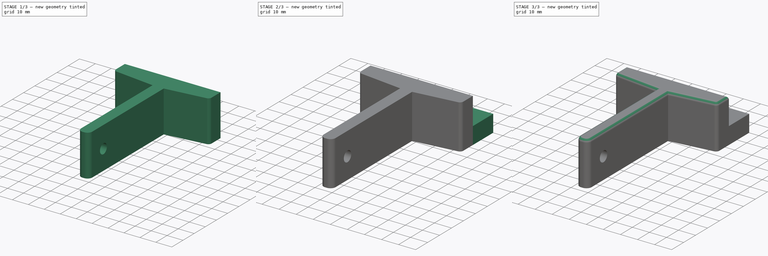
[diagram: build sequence overview — one tinted view per stage of 3, left to right]
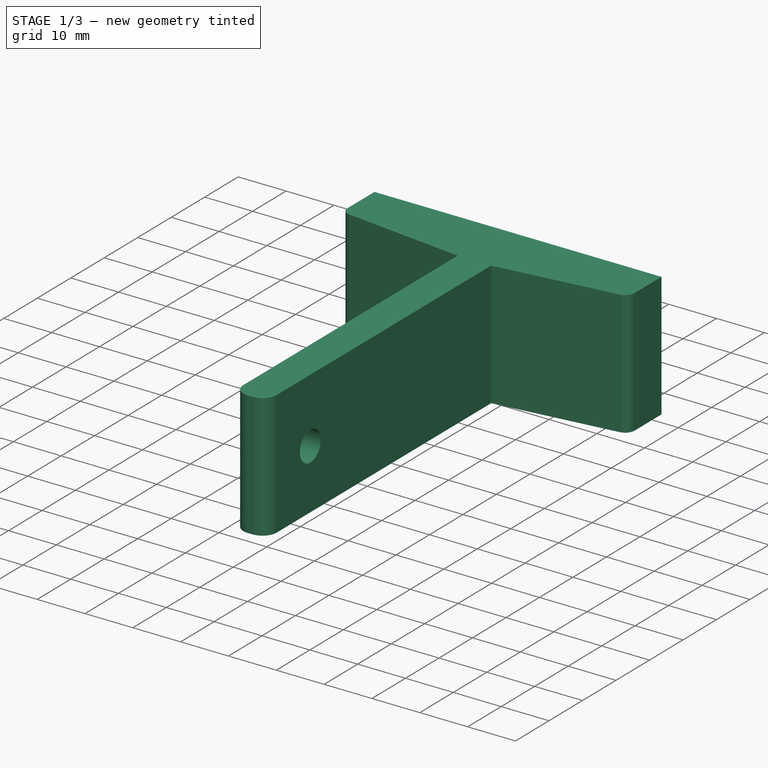
[diagram: stage 1 of 3 — iso view after this stage's code; geometry added in this stage tinted green]
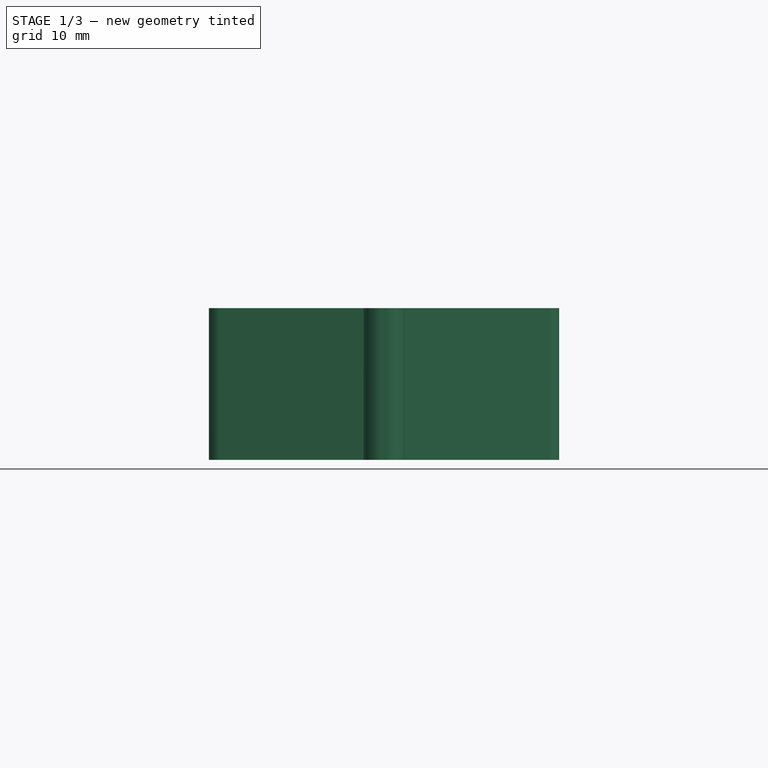
[diagram: stage 1 of 3 — front view after this stage's code; geometry added in this stage tinted green]
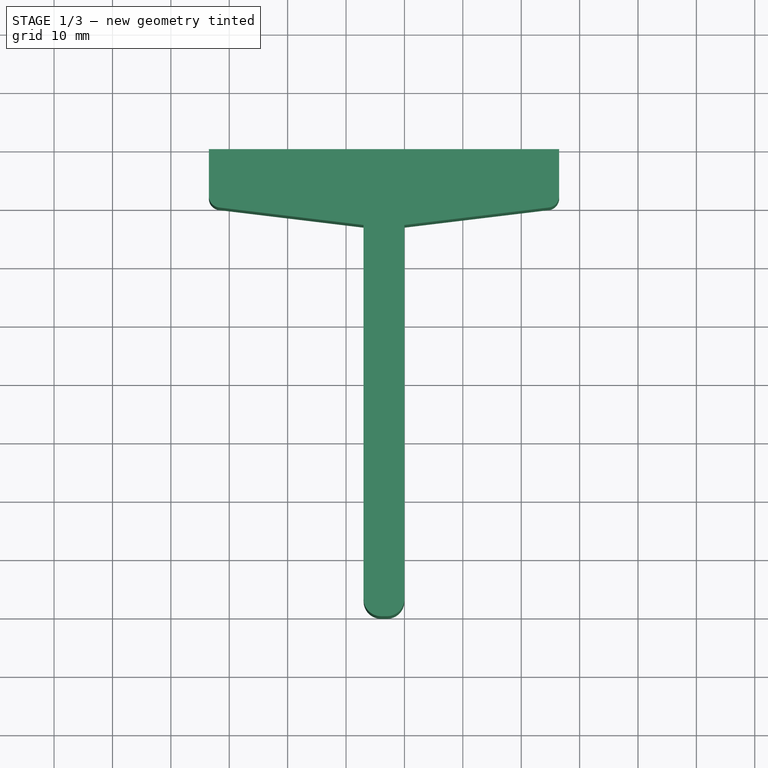
[diagram: stage 1 of 3 — top view after this stage's code; geometry added in this stage tinted green]
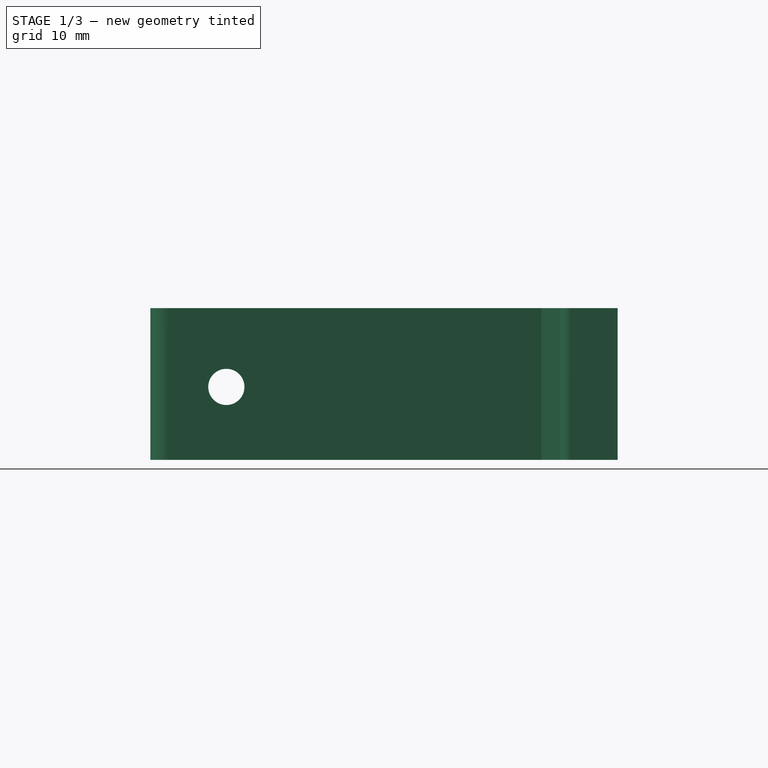
[diagram: stage 1 of 3 — right view after this stage's code; geometry added in this stage tinted green]
FCSTD DOCUMENT  (FreeCAD 0.15R4671 (Git))
Label: mag8-4
License: All rights reserved
LicenseURL: http://en.wikipedia.org/wiki/All_rights_reserved
objects: Sketcher::SketchObject×5, PartDesign::Pocket×3, PartDesign::Pad×2, PartDesign::Fillet×1
note: 16 computed .brp shape members not serialized (recipe doc carries the construction recipe); baked Part::Feature solids carry a one-line shape summary decoded from their .brp

FEATURE [Sketcher::SketchObject] Sketch
  Placement = pos=(0,0,0) rot=(1,0,0;3.14159rad)
  sketch-geometry (12):
    g0: LineSegment StartX=-33.5 StartY=0 StartZ=0 EndX=26.5 EndY=0 EndZ=0
    g1: LineSegment StartX=-33.5 StartY=0 StartZ=0 EndX=-33.5 EndY=8.01454 EndZ=0
    g2: LineSegment StartX=-7 StartY=13 StartZ=0 EndX=-7 EndY=77 EndZ=0
    g3: LineSegment StartX=-4 StartY=80 StartZ=0 EndX=-3 EndY=80 EndZ=0
    g4: LineSegment StartX=0 StartY=77 StartZ=0 EndX=0 EndY=13 EndZ=0
    g5: LineSegment StartX=0 StartY=13 StartZ=0 EndX=24.7408 EndY=10 EndZ=0
    g6: LineSegment StartX=26.5 StartY=8.01454 StartZ=0 EndX=26.5 EndY=0 EndZ=0
    g7: ArcOfCircle CenterX=-4 CenterY=77 CenterZ=0 NormalX=0 NormalY=0 NormalZ=1 Radius=3 StartAngle=1.5708 EndAngle=3.14159
    g8: ArcOfCircle CenterX=-3 CenterY=77 CenterZ=0 NormalX=0 NormalY=0 NormalZ=1 Radius=3 StartAngle=0 EndAngle=1.5708
    g9: ArcOfCircle CenterX=-31.5 CenterY=8.01454 CenterZ=0 NormalX=0 NormalY=0 NormalZ=1 Radius=2 StartAngle=1.69146 EndAngle=3.14159
    g10: ArcOfCircle CenterX=24.5 CenterY=8.01454 CenterZ=0 NormalX=0 NormalY=0 NormalZ=1 Radius=2 StartAngle=0 EndAngle=1.45013
    g11: LineSegment StartX=-31.7407 StartY=10 StartZ=0 EndX=-7 EndY=13 EndZ=0
  constraints (33):
    c: PointOnObject(g0,g-1)
    c: Horizontal(g0)
    c: Coincident(g1,g0)
    c: Vertical(g1)
    c: Vertical(g2)
    c: Horizontal(g3)
    c: Vertical(g4)
    c: Coincident(g5,g4)
    c: Coincident(g6,g0)
    c: Vertical(g6)
    c: DistanceX(g0,g0) = 60
    c: Tangent(g2,g7) = 1.5708
    c: Tangent(g3,g7) = 1.5708
    c: Tangent(g3,g8) = 1.5708
    c: Tangent(g4,g8) = 1.5708
    c: DistanceY(g-1,g4) = 13
    c: DistanceY(g3,g0) = -80
    c: Radius(g7) = 3
    c: Radius(g8) = 3
    c: DistanceX(g4,g2) = -7
    c: Tangent(g1,g9) = 1.5708
    c: Radius(g9) = 2
    c: Tangent(g5,g10) = 1.5708
    c: Tangent(g6,g10) = 1.5708
    c: Radius(g10) = 2
    c: DistanceY(g5,g0) = -10
    c: DistanceX(g4,g6) = 26.5
    c: PointOnObject(g4,g-2)
    c: Coincident(g11,g9)
    c: Coincident(g2,g11)
    c: DistanceY(g4,g2) = 0
    c: Tangent(g9,g11)
    c: DistanceY(g9,g0) = -10
FEATURE [PartDesign::Pad] Pad
  Length = 26
  Length2 = 100
  Placement = pos=(0,0,0) rot=(1,0,0;3.14159rad)
  Sketch = -> Sketch
  Type = 0
FEATURE [Sketcher::SketchObject] Sketch001
  ExternalGeometry = -> [Pad]
  Placement = pos=(0,0,0) rot=(0.57735,-0.57735,0.57735;4.18879rad)
  Support = -> Pad [Face7]
  sketch-geometry (1):
    g0: Circle CenterX=67 CenterY=13.5 CenterZ=0 NormalX=0 NormalY=0 NormalZ=1 Radius=3.1
  constraints (3):
    c: DistanceY(g0,g-4) = 12.5
    c: DistanceX(g-3,g0) = -13
    c: Radius(g0) = 3.1
FEATURE [PartDesign::Pocket] Pocket
  Length = 5
  Placement = pos=(0,0,0) rot=(1,0,0;3.14159rad)
  Sketch = -> Sketch001
  Type = 1
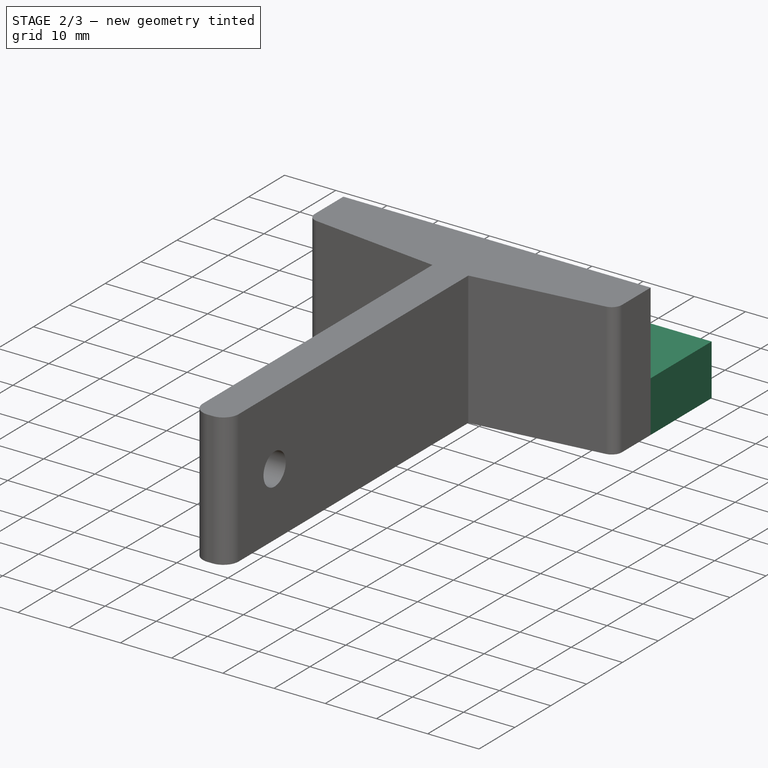
[diagram: stage 2 of 3 — iso view after this stage's code; geometry added in this stage tinted green]
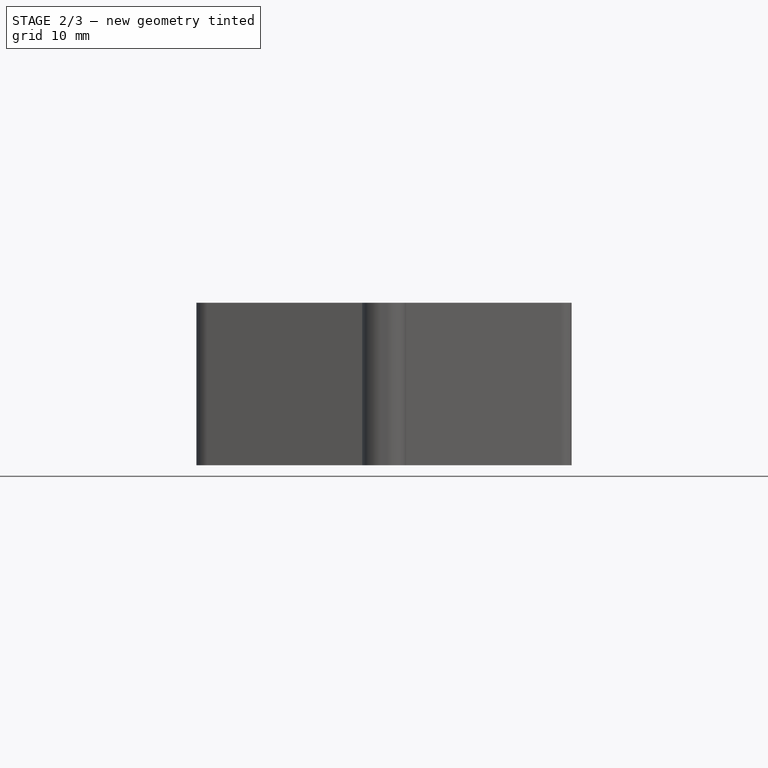
[diagram: stage 2 of 3 — front view after this stage's code; geometry added in this stage tinted green]
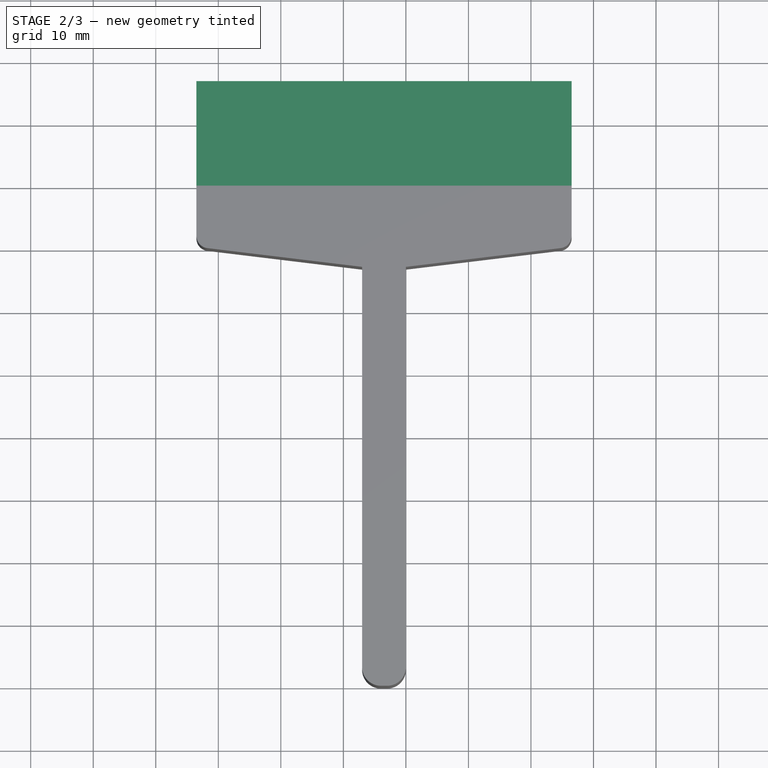
[diagram: stage 2 of 3 — top view after this stage's code; geometry added in this stage tinted green]
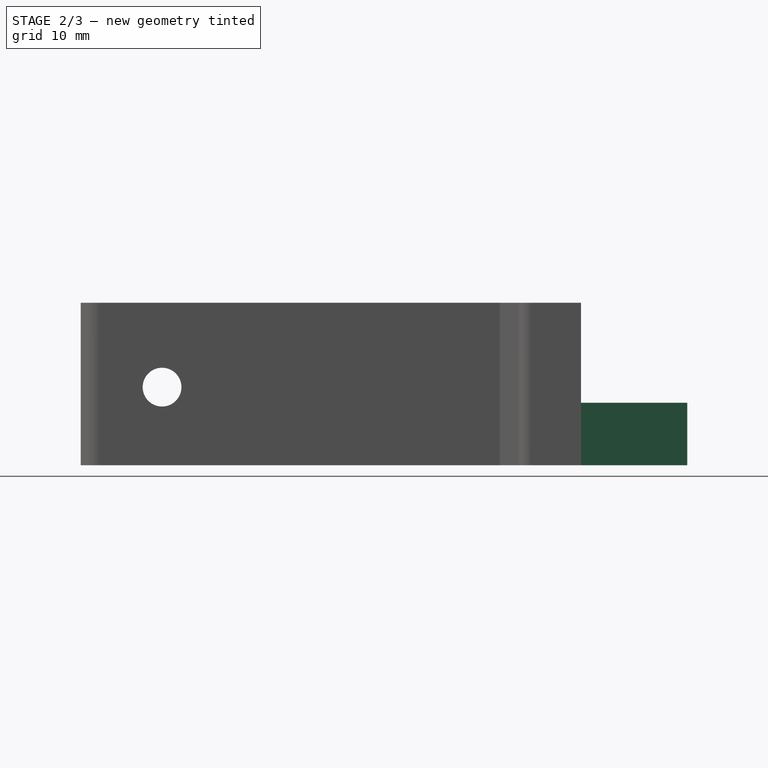
[diagram: stage 2 of 3 — right view after this stage's code; geometry added in this stage tinted green]
FEATURE [Sketcher::SketchObject] Sketch002
  ExternalGeometry = -> [Pocket]
  Placement = pos=(0,0,0) rot=(-1,0,0;1.5708rad)
  Support = -> Pocket [Face7]
  sketch-geometry (3):
    g0: Circle CenterX=-23.5 CenterY=8 CenterZ=0 NormalX=0 NormalY=0 NormalZ=1 Radius=4.05
    g1: Circle CenterX=13.5 CenterY=8 CenterZ=0 NormalX=0 NormalY=0 NormalZ=1 Radius=4.05
    g2: LineSegment [constr] StartX=-33.5 StartY=8 StartZ=0 EndX=26.5 EndY=8 EndZ=0
  constraints (10):
    c: PointOnObject(g2,g-3)
    c: PointOnObject(g2,g-4)
    c: Horizontal(g2)
    c: DistanceY(g2,g-3) = -8
    c: PointOnObject(g0,g2)
    c: PointOnObject(g1,g2)
    c: DistanceX(g0,g-3) = -10
    c: DistanceX(g1,g-4) = 13
    c: Radius(g1) = 4.05
    c: Equal(g0,g1)
FEATURE [PartDesign::Pocket] Pocket001
  Length = 9.9
  Placement = pos=(0,0,0) rot=(1,0,0;3.14159rad)
  Sketch = -> Sketch002
  Type = 0
FEATURE [Sketcher::SketchObject] Sketch003
  ExternalGeometry = -> [Pocket001]
  Placement = pos=(-33.5,0,0) rot=(0.57735,0.57735,-0.57735;4.18879rad)
  Support = -> Pocket001 [Face3]
  sketch-geometry (4):
    g0: LineSegment StartX=-8.01454 StartY=26 StartZ=0 EndX=16.9855 EndY=26 EndZ=0
    g1: LineSegment StartX=16.9855 StartY=26 StartZ=0 EndX=16.9855 EndY=16 EndZ=0
    g2: LineSegment StartX=16.9855 StartY=16 StartZ=0 EndX=-8.01454 EndY=16 EndZ=0
    g3: LineSegment StartX=-8.01454 StartY=16 StartZ=0 EndX=-8.01454 EndY=26 EndZ=0
  constraints (11):
    c: Coincident(g0,g1)
    c: Coincident(g1,g2)
    c: Coincident(g2,g3)
    c: Coincident(g3,g0)
    c: Horizontal(g0)
    c: Horizontal(g2)
    c: Vertical(g1)
    c: Vertical(g3)
    c: Coincident(g0,g-3)
    c: DistanceY(g0,g1) = -10
    c: DistanceX(g0,g0) = 25
FEATURE [PartDesign::Pad] Pad001
  Length = 60
  Length2 = 100
  Placement = pos=(0,0,0) rot=(1,0,0;3.14159rad)
  Reversed = true
  Sketch = -> Sketch003
  Type = 0
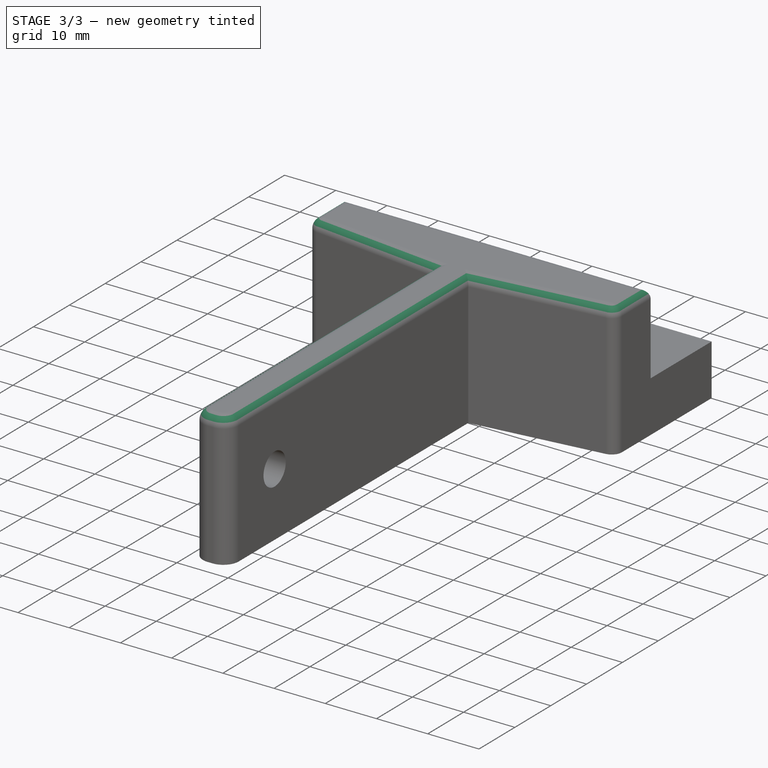
[diagram: stage 3 of 3 — iso view after this stage's code; geometry added in this stage tinted green]
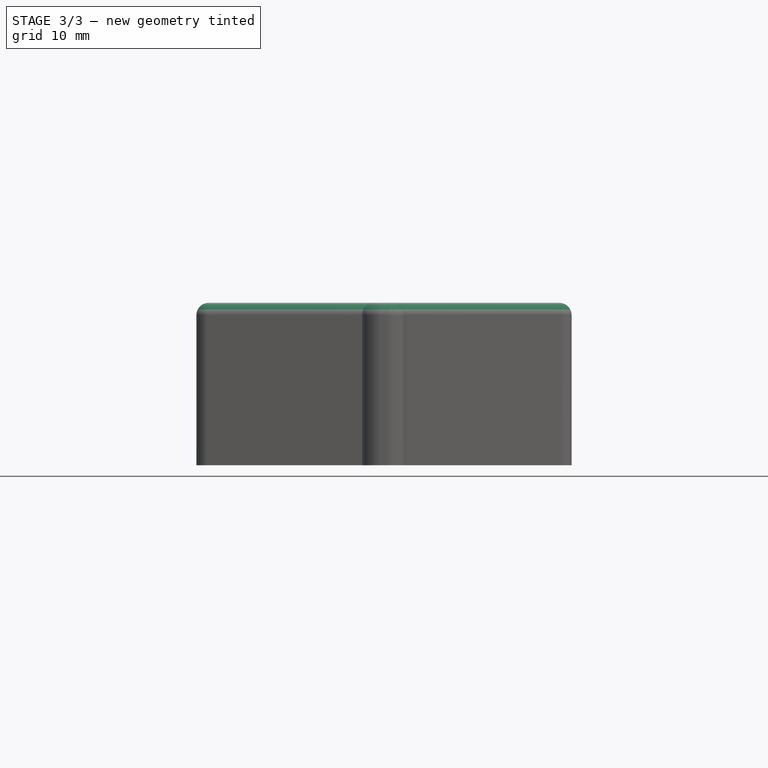
[diagram: stage 3 of 3 — front view after this stage's code; geometry added in this stage tinted green]
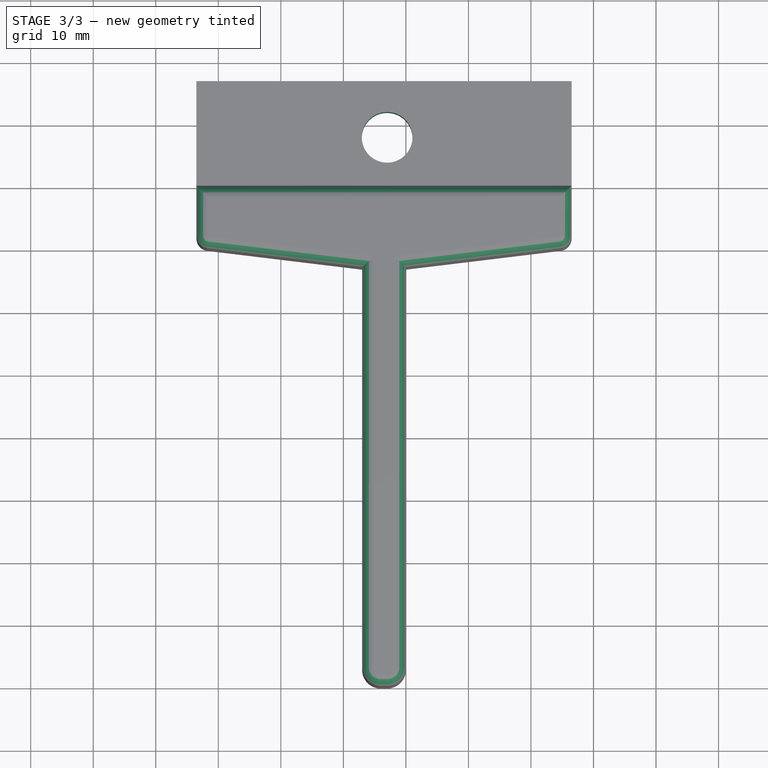
[diagram: stage 3 of 3 — top view after this stage's code; geometry added in this stage tinted green]
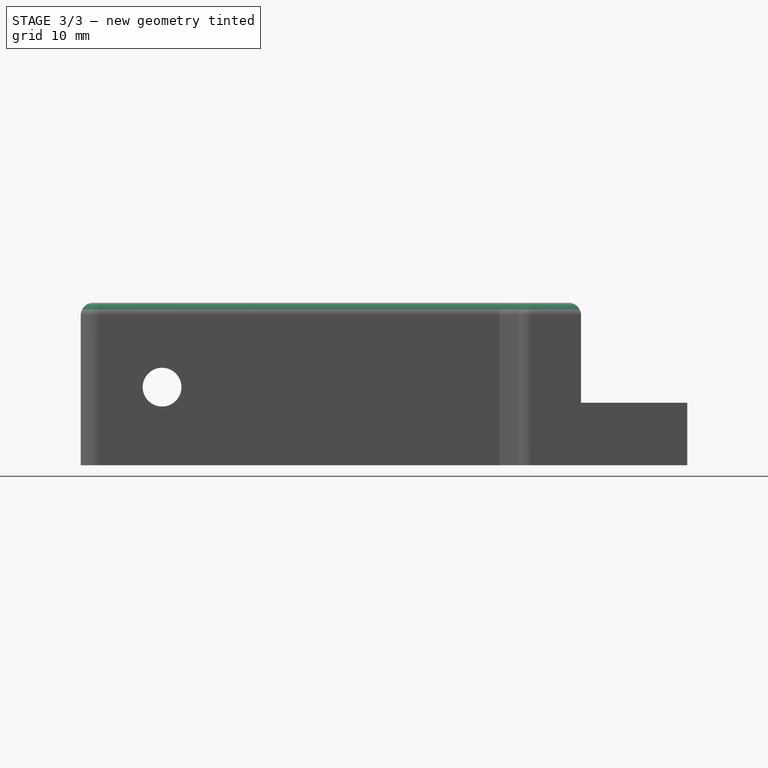
[diagram: stage 3 of 3 — right view after this stage's code; geometry added in this stage tinted green]
FEATURE [Sketcher::SketchObject] Sketch004
  Placement = pos=(0,0,-26) rot=(1,0,0;3.14159rad)
  Support = -> Pad001 [Face23]
  sketch-geometry (1):
    g0: Circle CenterX=-3 CenterY=-8 CenterZ=0 NormalX=0 NormalY=0 NormalZ=1 Radius=4.05
  constraints (3):
    c: Radius(g0) = 4.05
    c: DistanceY(g-1,g0) = -8
    c: DistanceX(g-1,g0) = -3
FEATURE [PartDesign::Pocket] Pocket002
  Length = 10
  Placement = pos=(0,0,0) rot=(1,0,0;3.14159rad)
  Sketch = -> Sketch004
  Type = 0
FEATURE [PartDesign::Fillet] Fillet
  Base = -> Pocket002 [Edge5,Edge13,Edge14,Edge15,Edge16,Edge17,Edge18,Edge19,Edge20,Edge21,Edge9,Edge3]
  Placement = pos=(0,0,0) rot=(1,0,0;3.14159rad)
  Radius = 2
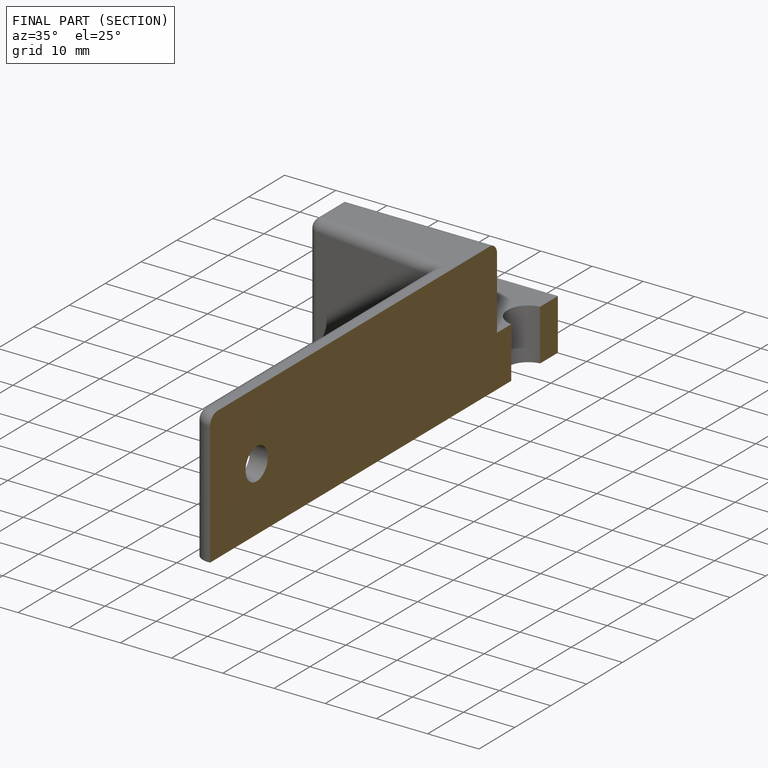
[diagram: finished part — half-section view (interior)]
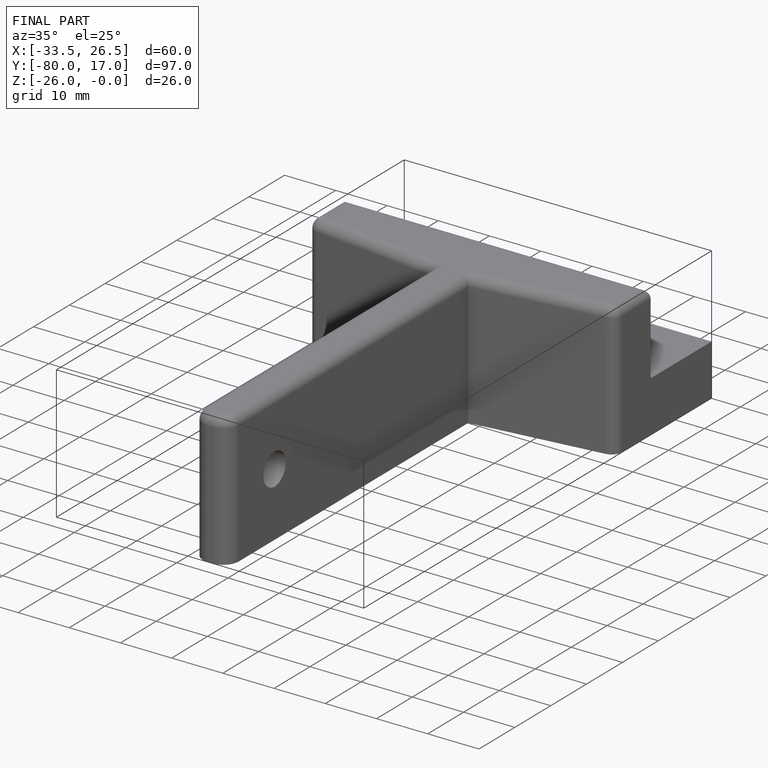
[diagram: finished part — iso view with bounding-box wireframe]
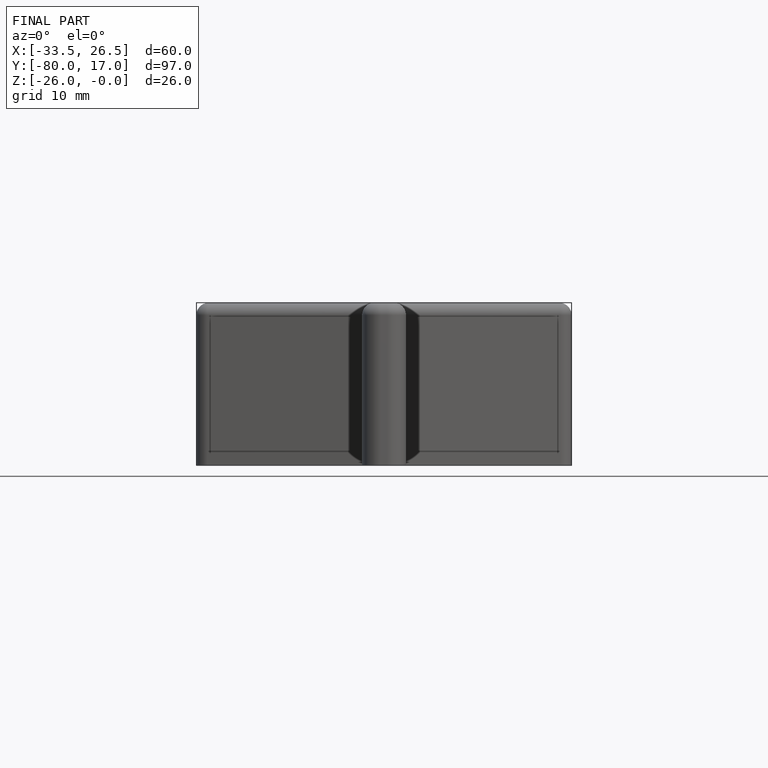
[diagram: finished part — front view with bounding-box wireframe]
